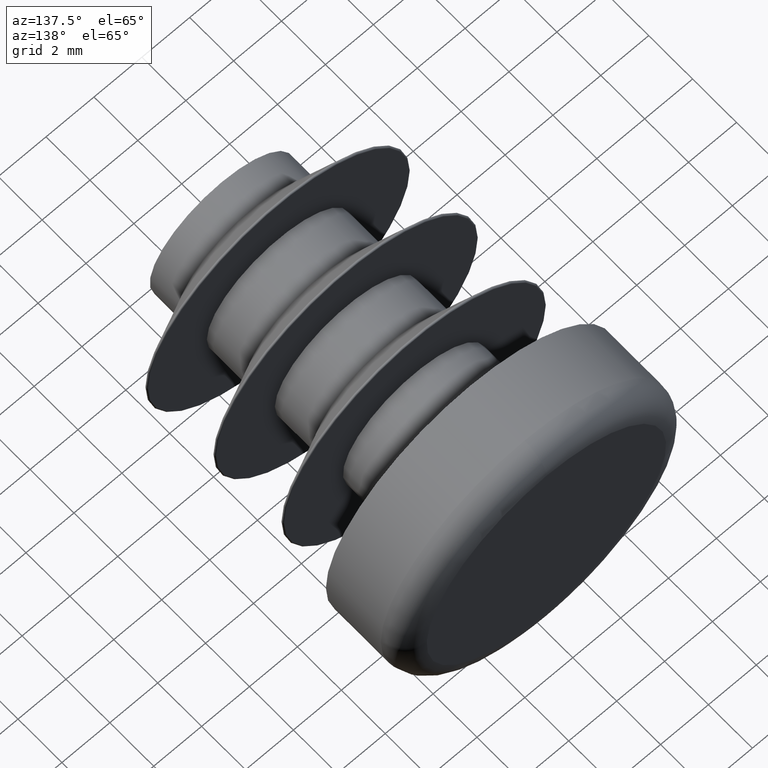
[diagram: clean part render]
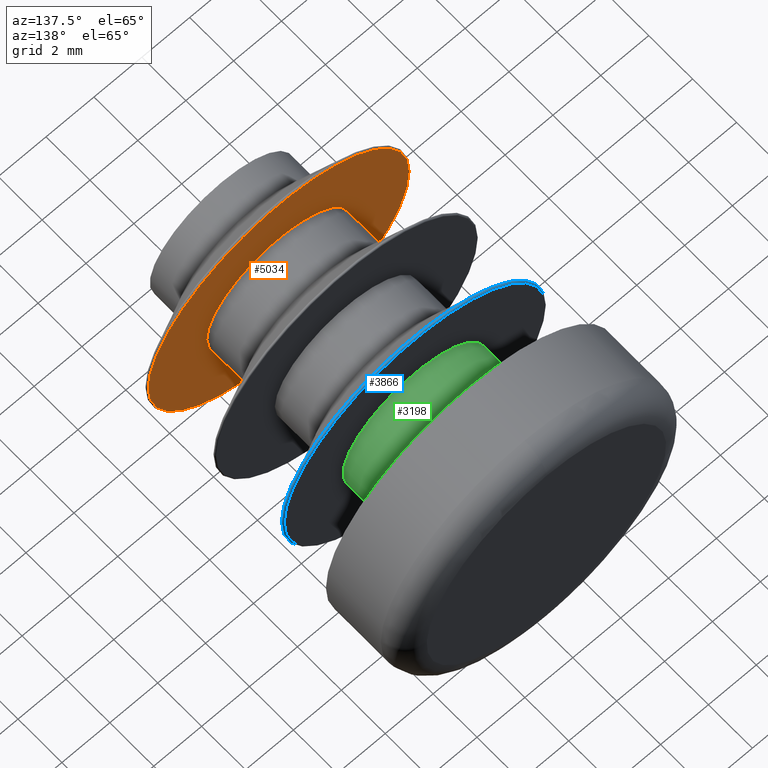
[diagram: same view with three faces highlighted in distinct colors, each labeled with its STEP entity id]
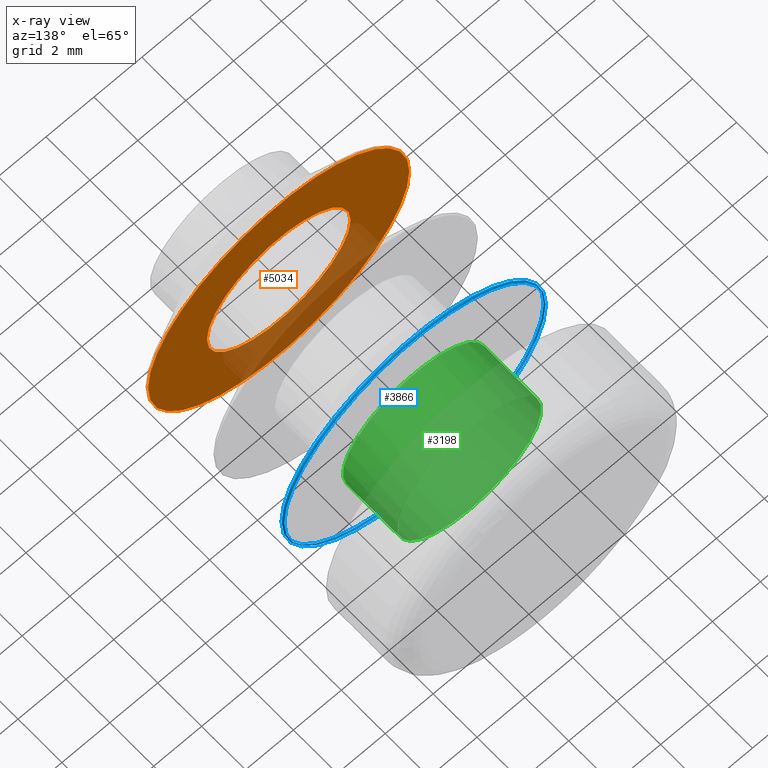
[diagram: x-ray of the same camera — body ghosted, the three highlighted faces saturated]
A machine part, auxiliary view with three faces highlighted in distinct colors.
The next image is the same camera in x-ray (body ghosted, the three faces saturated) — at least one of them is partly hidden behind the body in this view.
Their STEP definitions:

[orange] entity #5034 — the highlighted planar face has unit normal (-0, 1, 0).
#661 = CARTESIAN_POINT ( 'NONE',  ( 5.450000000000058797, 2.600000000000021849, 0.000000000000000000 ) ) ;
#718 = CIRCLE ( 'NONE', #8238, 5.450000000000085443 ) ;
#1623 = CARTESIAN_POINT ( 'NONE',  ( 3.000000000000068390, 2.599999999999996536, 0.000000000000000000 ) ) ;
#1675 = DIRECTION ( 'NONE',  ( 1.047444401652940007E-14, -1.000000000000000000, -0.000000000000000000 ) ) ;
#1693 = DIRECTION ( 'NONE',  ( -1.000000000000000000, -1.047444401652940007E-14, 0.000000000000000000 ) ) ;
#1713 = DIRECTION ( 'NONE',  ( -1.000000000000000000, -1.040834085586082679E-14, 0.000000000000000000 ) ) ;
#2419 = FACE_BOUND ( 'NONE', #6872, .T. ) ;
#2487 = CARTESIAN_POINT ( 'NONE',  ( 0.000000000000000000, 2.599999999999965006, 0.000000000000000000 ) ) ;
#2647 = DIRECTION ( 'NONE',  ( 1.047444401652940007E-14, -1.000000000000000000, -0.000000000000000000 ) ) ;
#3102 = VERTEX_POINT ( 'NONE', #4463 ) ;
#3283 = PLANE ( 'NONE',  #4297 ) ;
#3485 = DIRECTION ( 'NONE',  ( 1.000000000000000000, 1.050383022151077680E-14, 0.000000000000000000 ) ) ;
#3736 = FACE_OUTER_BOUND ( 'NONE', #7906, .T. ) ;
#3925 = ORIENTED_EDGE ( 'NONE', *, *, #3996, .T. ) ;
#3996 = EDGE_CURVE ( 'NONE', #3102, #3102, #8251, .T. ) ;
#4297 = AXIS2_PLACEMENT_3D ( 'NONE', #1623, #4693, #1693 ) ;
#4463 = CARTESIAN_POINT ( 'NONE',  ( -3.000000000000004441, 2.599999999999933920, 0.000000000000000000 ) ) ;
#4693 = DIRECTION ( 'NONE',  ( -1.047444401652940007E-14, 1.000000000000000000, 0.000000000000000000 ) ) ;
#5034 = ADVANCED_FACE ( 'NONE', ( #2419, #3736 ), #3283, .T. ) ;
#5255 = AXIS2_PLACEMENT_3D ( 'NONE', #2487, #1675, #1713 ) ;
#5922 = EDGE_CURVE ( 'NONE', #8440, #8440, #718, .T. ) ;
#6872 = EDGE_LOOP ( 'NONE', ( #3925 ) ) ;
#7178 = CARTESIAN_POINT ( 'NONE',  ( -2.723355444297607098E-14, 2.599999999999964562, 0.000000000000000000 ) ) ;
#7906 = EDGE_LOOP ( 'NONE', ( #9732 ) ) ;
#8238 = AXIS2_PLACEMENT_3D ( 'NONE', #7178, #2647, #3485 ) ;
#8251 = CIRCLE ( 'NONE', #5255, 3.000000000000004441 ) ;
#8440 = VERTEX_POINT ( 'NONE', #661 ) ;
#9732 = ORIENTED_EDGE ( 'NONE', *, *, #5922, .F. ) ;

[blue] entity #3866 — the highlighted toroidal blend (fillet) surface has major radius 5.45 mm and minor (blend) radius 0.05 mm.
#356 = CIRCLE ( 'NONE', #2200, 5.450000000000088107 ) ;
#645 = CARTESIAN_POINT ( 'NONE',  ( -9.217510734545937691E-14, 8.800000000000062883, 0.000000000000000000 ) ) ;
#1275 = AXIS2_PLACEMENT_3D ( 'NONE', #8059, #8334, #2217 ) ;
#1434 = EDGE_CURVE ( 'NONE', #6523, #6523, #5584, .T. ) ;
#2200 = AXIS2_PLACEMENT_3D ( 'NONE', #645, #7496, #2967 ) ;
#2217 = DIRECTION ( 'NONE',  ( 1.000000000000000000, 1.047444401652940007E-14, 0.000000000000000000 ) ) ;
#2408 = CARTESIAN_POINT ( 'NONE',  ( 5.449999999999996625, 8.800000000000119726, 0.000000000000000000 ) ) ;
#2692 = EDGE_LOOP ( 'NONE', ( #3927 ) ) ;
#2967 = DIRECTION ( 'NONE',  ( 1.000000000000000000, 1.050383022151077207E-14, 0.000000000000000000 ) ) ;
#3341 = AXIS2_PLACEMENT_3D ( 'NONE', #5899, #4311, #3686 ) ;
#3686 = DIRECTION ( 'NONE',  ( 1.000000000000000000, 1.046177176374496734E-14, 0.000000000000000000 ) ) ;
#3866 = ADVANCED_FACE ( 'NONE', ( #9463, #8137 ), #3872, .T. ) ;
#3872 = TOROIDAL_SURFACE ( 'NONE', #1275, 5.450000000000088107, 0.04999999999999912154 ) ;
#3927 = ORIENTED_EDGE ( 'NONE', *, *, #8128, .T. ) ;
#4311 = DIRECTION ( 'NONE',  ( 1.047444401652940007E-14, -1.000000000000000000, -0.000000000000000000 ) ) ;
#4371 = CARTESIAN_POINT ( 'NONE',  ( 5.471910112359548606, 8.705056179775404246, 0.000000000000000000 ) ) ;
#5584 = CIRCLE ( 'NONE', #3341, 5.471910112359640088 ) ;
#5899 = CARTESIAN_POINT ( 'NONE',  ( -9.118062361580016200E-14, 8.705056179775347402, 0.000000000000000000 ) ) ;
#6523 = VERTEX_POINT ( 'NONE', #4371 ) ;
#7427 = VERTEX_POINT ( 'NONE', #2408 ) ;
#7496 = DIRECTION ( 'NONE',  ( 1.047444401652940007E-14, -1.000000000000000000, -0.000000000000000000 ) ) ;
#8059 = CARTESIAN_POINT ( 'NONE',  ( -9.194034422677077600E-14, 8.750000000000063949, 0.000000000000000000 ) ) ;
#8128 = EDGE_CURVE ( 'NONE', #7427, #7427, #356, .T. ) ;
#8137 = FACE_OUTER_BOUND ( 'NONE', #8839, .T. ) ;
#8334 = DIRECTION ( 'NONE',  ( 1.047444401652940007E-14, -1.000000000000000000, -0.000000000000000000 ) ) ;
#8616 = ORIENTED_EDGE ( 'NONE', *, *, #1434, .F. ) ;
#8839 = EDGE_LOOP ( 'NONE', ( #8616 ) ) ;
#9463 = FACE_OUTER_BOUND ( 'NONE', #2692, .T. ) ;

[green] entity #3198 — the highlighted cylindrical surface (bore or boss wall) has radius 3 mm, axis along (-0, -1, -0).
#114 = DIRECTION ( 'NONE',  ( 1.047444401652940007E-14, -1.000000000000000000, -0.000000000000000000 ) ) ;
#707 = AXIS2_PLACEMENT_3D ( 'NONE', #5400, #114, #8502 ) ;
#1117 = DIRECTION ( 'NONE',  ( 0.000000000000000000, 0.000000000000000000, -1.000000000000000000 ) ) ;
#2063 = DIRECTION ( 'NONE',  ( -0.000000000000000000, -1.000000000000000000, -0.000000000000000000 ) ) ;
#2279 = CARTESIAN_POINT ( 'NONE',  ( 0.000000000000000000, 11.29999999999999893, -3.000000000000006217 ) ) ;
#2327 = FACE_OUTER_BOUND ( 'NONE', #6802, .T. ) ;
#2446 = CYLINDRICAL_SURFACE ( 'NONE', #7330, 3.000000000000004441 ) ;
#2666 = ORIENTED_EDGE ( 'NONE', *, *, #6340, .T. ) ;
#3198 = ADVANCED_FACE ( 'NONE', ( #2327, #6009 ), #2446, .T. ) ;
#3484 = AXIS2_PLACEMENT_3D ( 'NONE', #9021, #2063, #5172 ) ;
#3715 = CIRCLE ( 'NONE', #707, 3.000000000000004441 ) ;
#4983 = VERTEX_POINT ( 'NONE', #2279 ) ;
#5002 = ORIENTED_EDGE ( 'NONE', *, *, #6758, .F. ) ;
#5010 = CARTESIAN_POINT ( 'NONE',  ( 0.000000000000000000, 11.29999999999999716, 0.000000000000000000 ) ) ;
#5172 = DIRECTION ( 'NONE',  ( 0.000000000000000000, 0.000000000000000000, -1.000000000000000000 ) ) ;
#5400 = CARTESIAN_POINT ( 'NONE',  ( 0.000000000000000000, 8.800000000000062883, 0.000000000000000000 ) ) ;
#6009 = FACE_OUTER_BOUND ( 'NONE', #6242, .T. ) ;
#6242 = EDGE_LOOP ( 'NONE', ( #2666 ) ) ;
#6340 = EDGE_CURVE ( 'NONE', #4983, #4983, #9545, .T. ) ;
#6758 = EDGE_CURVE ( 'NONE', #6839, #6839, #3715, .T. ) ;
#6802 = EDGE_LOOP ( 'NONE', ( #5002 ) ) ;
#6839 = VERTEX_POINT ( 'NONE', #7680 ) ;
#7330 = AXIS2_PLACEMENT_3D ( 'NONE', #5010, #7974, #1117 ) ;
#7680 = CARTESIAN_POINT ( 'NONE',  ( -3.000000000000004441, 8.800000000000030909, 0.000000000000000000 ) ) ;
#7974 = DIRECTION ( 'NONE',  ( -0.000000000000000000, -1.000000000000000000, -0.000000000000000000 ) ) ;
#8502 = DIRECTION ( 'NONE',  ( -1.000000000000000000, -1.040834085586082679E-14, 0.000000000000000000 ) ) ;
#9021 = CARTESIAN_POINT ( 'NONE',  ( 0.000000000000000000, 11.29999999999999893, 0.000000000000000000 ) ) ;
#9545 = CIRCLE ( 'NONE', #3484, 3.000000000000006217 ) ;